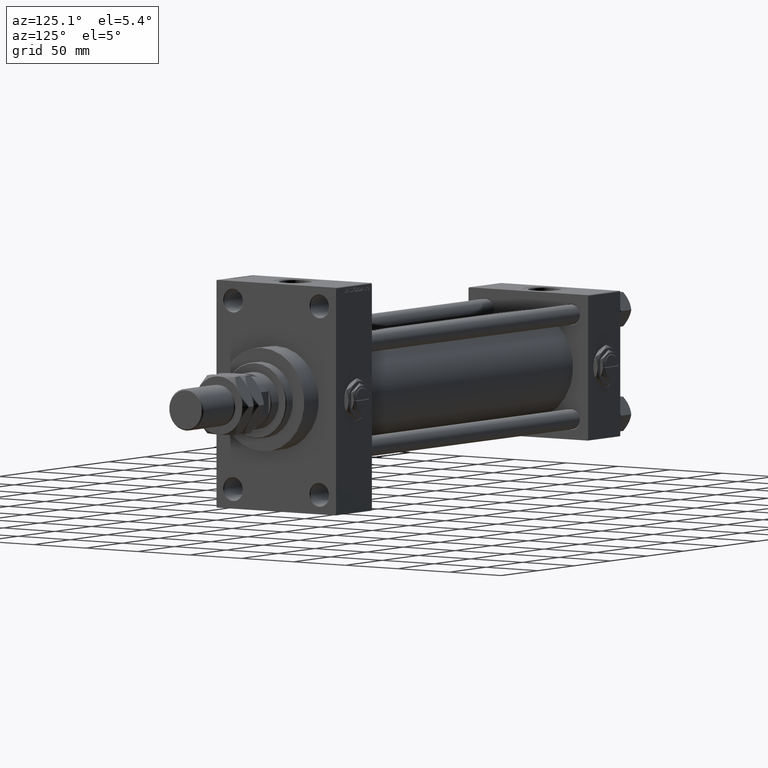
[diagram: clean part render]
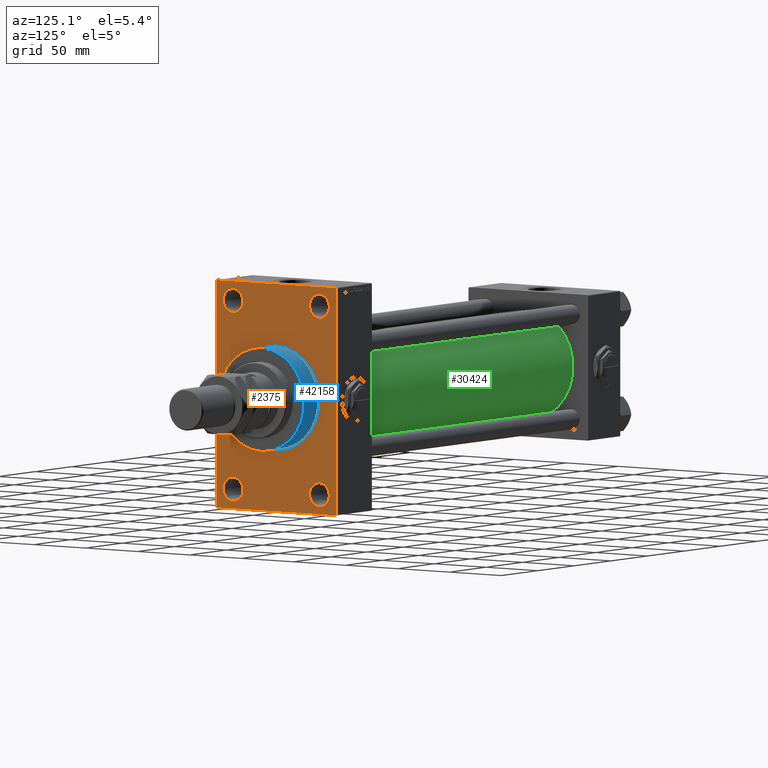
[diagram: same view with three faces highlighted in distinct colors, each labeled with its STEP entity id]
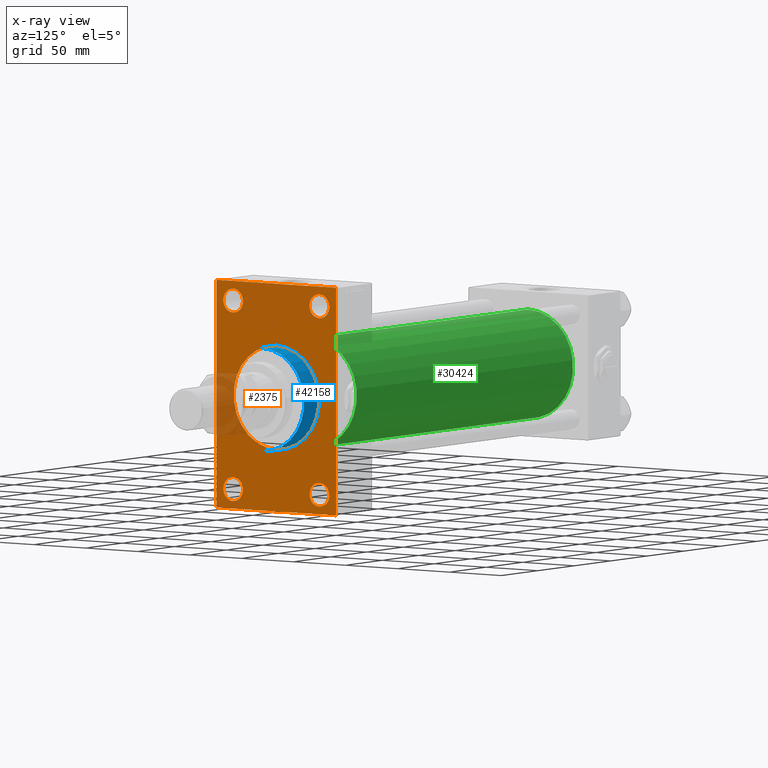
[diagram: x-ray of the same camera — body ghosted, the three highlighted faces saturated]
A machine part, auxiliary view with three faces highlighted in distinct colors.
The next image is the same camera in x-ray (body ghosted, the three faces saturated) — at least one of them is partly hidden behind the body in this view.
Their STEP definitions:

[orange] entity #2375 — the highlighted planar face has unit normal (-1, 0, 0).
#4 = LINE ( 'NONE', #43730, #44310 ) ;
#53 = PLANE ( 'NONE',  #41989 ) ;
#300 = EDGE_LOOP ( 'NONE', ( #7392, #36052 ) ) ;
#406 = DIRECTION ( 'NONE',  ( -1.000000000000000000, 0.000000000000000000, -0.000000000000000000 ) ) ;
#446 = DIRECTION ( 'NONE',  ( 0.000000000000000000, -0.7071067811865474617, 0.7071067811865474617 ) ) ;
#757 = DIRECTION ( 'NONE',  ( -1.000000000000000000, 0.000000000000000000, -0.000000000000000000 ) ) ;
#1269 = FACE_BOUND ( 'NONE', #36810, .T. ) ;
#1315 = CARTESIAN_POINT ( 'NONE',  ( 388.9999999999999432, -57.00000000000007105, 89.99999999999997158 ) ) ;
#1343 = CARTESIAN_POINT ( 'NONE',  ( 388.9999999999999432, -41.49999999999999289, -74.49999999999998579 ) ) ;
#1368 = CARTESIAN_POINT ( 'NONE',  ( 388.9999999999999432, -41.49999999999999289, -83.99999999999998579 ) ) ;
#2169 = CIRCLE ( 'NONE', #22123, 41.00000000000000000 ) ;
#2375 = ADVANCED_FACE ( 'NONE', ( #46668, #34441, #11008, #1269, #21321, #45251 ), #53, .F. ) ;
#2440 = DIRECTION ( 'NONE',  ( 0.000000000000000000, 0.000000000000000000, -1.000000000000000000 ) ) ;
#2944 = VERTEX_POINT ( 'NONE', #9205 ) ;
#3102 = EDGE_CURVE ( 'NONE', #22162, #2944, #2169, .T. ) ;
#3243 = AXIS2_PLACEMENT_3D ( 'NONE', #25218, #28868, #17153 ) ;
#3552 = DIRECTION ( 'NONE',  ( 1.000000000000000000, 0.000000000000000000, 0.000000000000000000 ) ) ;
#3771 = DIRECTION ( 'NONE',  ( -1.000000000000000000, 0.000000000000000000, -0.000000000000000000 ) ) ;
#3883 = DIRECTION ( 'NONE',  ( 0.000000000000000000, 0.000000000000000000, 1.000000000000000000 ) ) ;
#5060 = EDGE_CURVE ( 'NONE', #45394, #45372, #31014, .T. ) ;
#5654 = CIRCLE ( 'NONE', #18120, 9.500000000000008882 ) ;
#5809 = VERTEX_POINT ( 'NONE', #15537 ) ;
#6300 = VERTEX_POINT ( 'NONE', #26806 ) ;
#6808 = AXIS2_PLACEMENT_3D ( 'NONE', #1343, #17749, #21393 ) ;
#6936 = DIRECTION ( 'NONE',  ( 0.000000000000000000, 0.000000000000000000, 1.000000000000000000 ) ) ;
#7228 = CARTESIAN_POINT ( 'NONE',  ( 388.9999999999999432, 41.50000000000000711, -74.50000000000000000 ) ) ;
#7392 = ORIENTED_EDGE ( 'NONE', *, *, #14023, .T. ) ;
#7521 = CARTESIAN_POINT ( 'NONE',  ( 388.9999999999999432, 57.49999999999997158, 89.99999999999998579 ) ) ;
#7798 = ORIENTED_EDGE ( 'NONE', *, *, #30352, .T. ) ;
#7867 = ORIENTED_EDGE ( 'NONE', *, *, #37588, .T. ) ;
#8774 = EDGE_CURVE ( 'NONE', #45394, #9452, #44559, .T. ) ;
#8824 = CIRCLE ( 'NONE', #13812, 9.500000000000008882 ) ;
#9205 = CARTESIAN_POINT ( 'NONE',  ( 388.9999999999999432, 0.000000000000000000, 41.00000000000000000 ) ) ;
#9379 = EDGE_CURVE ( 'NONE', #16783, #25440, #17397, .T. ) ;
#9452 = VERTEX_POINT ( 'NONE', #48794 ) ;
#9981 = EDGE_CURVE ( 'NONE', #14624, #37822, #28169, .T. ) ;
#10555 = LINE ( 'NONE', #14977, #42896 ) ;
#11008 = FACE_BOUND ( 'NONE', #12851, .T. ) ;
#11402 = DIRECTION ( 'NONE',  ( 0.000000000000000000, 0.000000000000000000, 1.000000000000000000 ) ) ;
#11661 = DIRECTION ( 'NONE',  ( -1.000000000000000000, 0.000000000000000000, -0.000000000000000000 ) ) ;
#11677 = VERTEX_POINT ( 'NONE', #16714 ) ;
#12033 = VERTEX_POINT ( 'NONE', #26015 ) ;
#12666 = ORIENTED_EDGE ( 'NONE', *, *, #47920, .T. ) ;
#12822 = ORIENTED_EDGE ( 'NONE', *, *, #15536, .T. ) ;
#12851 = EDGE_LOOP ( 'NONE', ( #39645, #36792 ) ) ;
#13812 = AXIS2_PLACEMENT_3D ( 'NONE', #28606, #757, #3883 ) ;
#13851 = DIRECTION ( 'NONE',  ( 0.000000000000000000, -1.000000000000000000, -1.206764157201257045E-16 ) ) ;
#14023 = EDGE_CURVE ( 'NONE', #37822, #14624, #18461, .T. ) ;
#14594 = ORIENTED_EDGE ( 'NONE', *, *, #9379, .T. ) ;
#14624 = VERTEX_POINT ( 'NONE', #45147 ) ;
#14949 = CIRCLE ( 'NONE', #26581, 9.500000000000008882 ) ;
#14977 = CARTESIAN_POINT ( 'NONE',  ( 388.9999999999999432, 57.49999999999997158, 89.99999999999998579 ) ) ;
#15536 = EDGE_CURVE ( 'NONE', #39116, #35544, #4, .T. ) ;
#15537 = CARTESIAN_POINT ( 'NONE',  ( 388.9999999999999432, 57.49999999999997158, 89.49999999999998579 ) ) ;
#15588 = CIRCLE ( 'NONE', #34722, 9.500000000000008882 ) ;
#16714 = CARTESIAN_POINT ( 'NONE',  ( 388.9999999999999432, -41.49999999999999289, 84.00000000000001421 ) ) ;
#16783 = VERTEX_POINT ( 'NONE', #43479 ) ;
#17153 = DIRECTION ( 'NONE',  ( 0.000000000000000000, 0.000000000000000000, 1.000000000000000000 ) ) ;
#17226 = CARTESIAN_POINT ( 'NONE',  ( 388.9999999999999432, 57.49999999999997868, -90.00000000000000000 ) ) ;
#17397 = CIRCLE ( 'NONE', #22378, 9.500000000000008882 ) ;
#17419 = DIRECTION ( 'NONE',  ( -1.000000000000000000, 0.000000000000000000, -0.000000000000000000 ) ) ;
#17749 = DIRECTION ( 'NONE',  ( -1.000000000000000000, 0.000000000000000000, -0.000000000000000000 ) ) ;
#17775 = DIRECTION ( 'NONE',  ( -1.000000000000000000, 0.000000000000000000, -0.000000000000000000 ) ) ;
#18120 = AXIS2_PLACEMENT_3D ( 'NONE', #39428, #3771, #19671 ) ;
#18412 = CARTESIAN_POINT ( 'NONE',  ( 388.9999999999999432, -41.49999999999999289, 74.50000000000001421 ) ) ;
#18461 = CIRCLE ( 'NONE', #6808, 9.500000000000008882 ) ;
#19351 = VERTEX_POINT ( 'NONE', #27459 ) ;
#19671 = DIRECTION ( 'NONE',  ( 0.000000000000000000, 0.000000000000000000, 1.000000000000000000 ) ) ;
#19705 = DIRECTION ( 'NONE',  ( 0.000000000000000000, 0.000000000000000000, -1.000000000000000000 ) ) ;
#19715 = VECTOR ( 'NONE', #46894, 1000.000000000000000 ) ;
#20628 = CARTESIAN_POINT ( 'NONE',  ( 388.9999999999999432, 41.50000000000000711, 84.00000000000001421 ) ) ;
#21321 = FACE_BOUND ( 'NONE', #35800, .T. ) ;
#21393 = DIRECTION ( 'NONE',  ( 0.000000000000000000, 0.000000000000000000, 1.000000000000000000 ) ) ;
#22123 = AXIS2_PLACEMENT_3D ( 'NONE', #41219, #50059, #2440 ) ;
#22162 = VERTEX_POINT ( 'NONE', #48765 ) ;
#22378 = AXIS2_PLACEMENT_3D ( 'NONE', #36324, #406, #39711 ) ;
#22526 = EDGE_CURVE ( 'NONE', #5809, #38384, #32463, .T. ) ;
#23598 = CARTESIAN_POINT ( 'NONE',  ( 388.9999999999999432, 0.000000000000000000, 0.000000000000000000 ) ) ;
#24585 = CARTESIAN_POINT ( 'NONE',  ( 388.9999999999999432, -57.50000000000002132, 89.99999999999997158 ) ) ;
#25130 = LINE ( 'NONE', #41256, #30734 ) ;
#25218 = CARTESIAN_POINT ( 'NONE',  ( 388.9999999999999432, -41.49999999999999289, -74.49999999999998579 ) ) ;
#25440 = VERTEX_POINT ( 'NONE', #20628 ) ;
#26015 = CARTESIAN_POINT ( 'NONE',  ( 388.9999999999999432, 41.50000000000000711, -84.00000000000000000 ) ) ;
#26299 = CARTESIAN_POINT ( 'NONE',  ( 388.9999999999999432, 56.99999999999997158, 89.99999999999998579 ) ) ;
#26581 = AXIS2_PLACEMENT_3D ( 'NONE', #37549, #17775, #41707 ) ;
#26601 = EDGE_CURVE ( 'NONE', #12033, #6300, #8824, .T. ) ;
#26806 = CARTESIAN_POINT ( 'NONE',  ( 388.9999999999999432, 41.50000000000000711, -64.99999999999998579 ) ) ;
#26957 = EDGE_CURVE ( 'NONE', #5809, #45372, #10555, .T. ) ;
#27346 = DIRECTION ( 'NONE',  ( -0.000000000000000000, -0.7071067811865524577, -0.7071067811865426878 ) ) ;
#27459 = CARTESIAN_POINT ( 'NONE',  ( 388.9999999999999432, -57.50000000000002132, -89.50000000000002842 ) ) ;
#28169 = CIRCLE ( 'NONE', #3243, 9.500000000000008882 ) ;
#28234 = DIRECTION ( 'NONE',  ( 0.000000000000000000, 0.000000000000000000, -1.000000000000000000 ) ) ;
#28606 = CARTESIAN_POINT ( 'NONE',  ( 388.9999999999999432, 41.50000000000000711, -74.50000000000000000 ) ) ;
#28703 = CARTESIAN_POINT ( 'NONE',  ( 388.9999999999999432, 56.99999999999997868, -90.00000000000000000 ) ) ;
#28868 = DIRECTION ( 'NONE',  ( -1.000000000000000000, 0.000000000000000000, -0.000000000000000000 ) ) ;
#29121 = CARTESIAN_POINT ( 'NONE',  ( 388.9999999999999432, 0.000000000000000000, 0.000000000000000000 ) ) ;
#29207 = CARTESIAN_POINT ( 'NONE',  ( 388.9999999999999432, -57.50000000000002132, 89.50000000000002842 ) ) ;
#29463 = EDGE_CURVE ( 'NONE', #35544, #19351, #44355, .T. ) ;
#29539 = EDGE_LOOP ( 'NONE', ( #41727, #7867, #51351, #47972, #49753, #40089, #12666, #12822 ) ) ;
#29651 = CARTESIAN_POINT ( 'NONE',  ( 388.9999999999999432, -41.49999999999999289, 65.00000000000000000 ) ) ;
#30012 = EDGE_CURVE ( 'NONE', #6300, #12033, #15588, .T. ) ;
#30352 = EDGE_CURVE ( 'NONE', #11677, #39600, #5654, .T. ) ;
#30734 = VECTOR ( 'NONE', #49592, 1000.000000000000114 ) ;
#31014 = LINE ( 'NONE', #35171, #19715 ) ;
#31553 = ORIENTED_EDGE ( 'NONE', *, *, #37425, .F. ) ;
#31764 = ORIENTED_EDGE ( 'NONE', *, *, #3102, .F. ) ;
#32463 = LINE ( 'NONE', #36107, #33611 ) ;
#33118 = CARTESIAN_POINT ( 'NONE',  ( 388.9999999999999432, 57.49999999999997868, -89.49999999999995737 ) ) ;
#33161 = ORIENTED_EDGE ( 'NONE', *, *, #46275, .T. ) ;
#33611 = VECTOR ( 'NONE', #446, 1000.000000000000114 ) ;
#34441 = FACE_BOUND ( 'NONE', #300, .T. ) ;
#34722 = AXIS2_PLACEMENT_3D ( 'NONE', #7228, #11661, #11402 ) ;
#35142 = VECTOR ( 'NONE', #47101, 1000.000000000000000 ) ;
#35171 = CARTESIAN_POINT ( 'NONE',  ( 388.9999999999999432, 57.49999999999997868, -89.50000000000001421 ) ) ;
#35544 = VERTEX_POINT ( 'NONE', #29207 ) ;
#35800 = EDGE_LOOP ( 'NONE', ( #31553, #31764 ) ) ;
#36052 = ORIENTED_EDGE ( 'NONE', *, *, #9981, .T. ) ;
#36107 = CARTESIAN_POINT ( 'NONE',  ( 388.9999999999999432, 56.99999999999997158, 89.99999999999998579 ) ) ;
#36324 = CARTESIAN_POINT ( 'NONE',  ( 388.9999999999999432, 41.50000000000000711, 74.50000000000001421 ) ) ;
#36792 = ORIENTED_EDGE ( 'NONE', *, *, #30012, .T. ) ;
#36810 = EDGE_LOOP ( 'NONE', ( #14594, #49144 ) ) ;
#37425 = EDGE_CURVE ( 'NONE', #2944, #22162, #43183, .T. ) ;
#37549 = CARTESIAN_POINT ( 'NONE',  ( 388.9999999999999432, 41.50000000000000711, 74.50000000000001421 ) ) ;
#37588 = EDGE_CURVE ( 'NONE', #19351, #9452, #25130, .T. ) ;
#37822 = VERTEX_POINT ( 'NONE', #1368 ) ;
#37889 = EDGE_CURVE ( 'NONE', #25440, #16783, #14949, .T. ) ;
#38384 = VERTEX_POINT ( 'NONE', #26299 ) ;
#39116 = VERTEX_POINT ( 'NONE', #1315 ) ;
#39428 = CARTESIAN_POINT ( 'NONE',  ( 388.9999999999999432, -41.49999999999999289, 74.50000000000001421 ) ) ;
#39600 = VERTEX_POINT ( 'NONE', #29651 ) ;
#39645 = ORIENTED_EDGE ( 'NONE', *, *, #26601, .T. ) ;
#39711 = DIRECTION ( 'NONE',  ( 0.000000000000000000, 0.000000000000000000, 1.000000000000000000 ) ) ;
#40089 = ORIENTED_EDGE ( 'NONE', *, *, #22526, .T. ) ;
#40684 = AXIS2_PLACEMENT_3D ( 'NONE', #23598, #3552, #19705 ) ;
#41219 = CARTESIAN_POINT ( 'NONE',  ( 388.9999999999999432, 0.000000000000000000, 0.000000000000000000 ) ) ;
#41256 = CARTESIAN_POINT ( 'NONE',  ( 388.9999999999999432, -57.00000000000002132, -90.00000000000001421 ) ) ;
#41707 = DIRECTION ( 'NONE',  ( 0.000000000000000000, 0.000000000000000000, 1.000000000000000000 ) ) ;
#41727 = ORIENTED_EDGE ( 'NONE', *, *, #29463, .T. ) ;
#41759 = AXIS2_PLACEMENT_3D ( 'NONE', #18412, #42598, #6936 ) ;
#41989 = AXIS2_PLACEMENT_3D ( 'NONE', #29121, #17419, #48654 ) ;
#42045 = DIRECTION ( 'NONE',  ( 0.000000000000000000, 3.854941057726238467E-17, -1.000000000000000000 ) ) ;
#42598 = DIRECTION ( 'NONE',  ( -1.000000000000000000, 0.000000000000000000, -0.000000000000000000 ) ) ;
#42896 = VECTOR ( 'NONE', #42045, 1000.000000000000000 ) ;
#43183 = CIRCLE ( 'NONE', #40684, 41.00000000000000000 ) ;
#43479 = CARTESIAN_POINT ( 'NONE',  ( 388.9999999999999432, 41.50000000000000711, 65.00000000000000000 ) ) ;
#43730 = CARTESIAN_POINT ( 'NONE',  ( 388.9999999999999432, -57.50000000000002132, 89.50000000000002842 ) ) ;
#43864 = EDGE_LOOP ( 'NONE', ( #33161, #7798 ) ) ;
#44259 = CIRCLE ( 'NONE', #41759, 9.500000000000008882 ) ;
#44310 = VECTOR ( 'NONE', #27346, 1000.000000000000000 ) ;
#44355 = LINE ( 'NONE', #24585, #48829 ) ;
#44559 = LINE ( 'NONE', #17226, #49758 ) ;
#45147 = CARTESIAN_POINT ( 'NONE',  ( 388.9999999999999432, -41.49999999999999289, -64.99999999999997158 ) ) ;
#45251 = FACE_OUTER_BOUND ( 'NONE', #29539, .T. ) ;
#45372 = VERTEX_POINT ( 'NONE', #33118 ) ;
#45394 = VERTEX_POINT ( 'NONE', #28703 ) ;
#46275 = EDGE_CURVE ( 'NONE', #39600, #11677, #44259, .T. ) ;
#46668 = FACE_BOUND ( 'NONE', #43864, .T. ) ;
#46894 = DIRECTION ( 'NONE',  ( -0.000000000000000000, 0.7071067811865573427, 0.7071067811865378028 ) ) ;
#47101 = DIRECTION ( 'NONE',  ( 0.000000000000000000, -1.000000000000000000, -1.206764157201257291E-16 ) ) ;
#47606 = LINE ( 'NONE', #7521, #35142 ) ;
#47920 = EDGE_CURVE ( 'NONE', #38384, #39116, #47606, .T. ) ;
#47972 = ORIENTED_EDGE ( 'NONE', *, *, #5060, .T. ) ;
#48654 = DIRECTION ( 'NONE',  ( -0.000000000000000000, 0.000000000000000000, 1.000000000000000000 ) ) ;
#48765 = CARTESIAN_POINT ( 'NONE',  ( 388.9999999999999432, 5.021051876504148963E-15, -41.00000000000000000 ) ) ;
#48794 = CARTESIAN_POINT ( 'NONE',  ( 388.9999999999999432, -57.00000000000002132, -90.00000000000001421 ) ) ;
#48829 = VECTOR ( 'NONE', #28234, 1000.000000000000000 ) ;
#49144 = ORIENTED_EDGE ( 'NONE', *, *, #37889, .T. ) ;
#49592 = DIRECTION ( 'NONE',  ( 0.000000000000000000, 0.7071067811865965336, -0.7071067811864985009 ) ) ;
#49753 = ORIENTED_EDGE ( 'NONE', *, *, #26957, .F. ) ;
#49758 = VECTOR ( 'NONE', #13851, 1000.000000000000000 ) ;
#50059 = DIRECTION ( 'NONE',  ( 1.000000000000000000, 0.000000000000000000, 0.000000000000000000 ) ) ;
#51351 = ORIENTED_EDGE ( 'NONE', *, *, #8774, .F. ) ;

[blue] entity #42158 — the highlighted cylindrical surface (partial cylindrical patch) has radius 41 mm, axis along (-1, -0, -0).
#972 = AXIS2_PLACEMENT_3D ( 'NONE', #50607, #42798, #34994 ) ;
#1694 = CARTESIAN_POINT ( 'NONE',  ( 409.0000000000000000, 5.021051876504148963E-15, -41.00000000000000000 ) ) ;
#1921 = ORIENTED_EDGE ( 'NONE', *, *, #3102, .T. ) ;
#2011 = DIRECTION ( 'NONE',  ( 1.000000000000000000, 0.000000000000000000, 0.000000000000000000 ) ) ;
#2169 = CIRCLE ( 'NONE', #22123, 41.00000000000000000 ) ;
#2440 = DIRECTION ( 'NONE',  ( 0.000000000000000000, 0.000000000000000000, -1.000000000000000000 ) ) ;
#2528 = DIRECTION ( 'NONE',  ( 0.000000000000000000, 0.000000000000000000, -1.000000000000000000 ) ) ;
#2530 = CARTESIAN_POINT ( 'NONE',  ( 409.0000000000000000, 5.021051876504148963E-15, -41.00000000000000000 ) ) ;
#2944 = VERTEX_POINT ( 'NONE', #9205 ) ;
#3102 = EDGE_CURVE ( 'NONE', #22162, #2944, #2169, .T. ) ;
#3187 = DIRECTION ( 'NONE',  ( -1.000000000000000000, -0.000000000000000000, -0.000000000000000000 ) ) ;
#3686 = LINE ( 'NONE', #19577, #10002 ) ;
#6126 = ORIENTED_EDGE ( 'NONE', *, *, #16825, .F. ) ;
#7084 = VERTEX_POINT ( 'NONE', #44181 ) ;
#9205 = CARTESIAN_POINT ( 'NONE',  ( 388.9999999999999432, 0.000000000000000000, 41.00000000000000000 ) ) ;
#10002 = VECTOR ( 'NONE', #3187, 1000.000000000000000 ) ;
#16825 = EDGE_CURVE ( 'NONE', #39342, #7084, #18611, .T. ) ;
#17746 = AXIS2_PLACEMENT_3D ( 'NONE', #25958, #2011, #2528 ) ;
#18611 = CIRCLE ( 'NONE', #17746, 41.00000000000000000 ) ;
#19577 = CARTESIAN_POINT ( 'NONE',  ( 409.0000000000000000, 0.000000000000000000, 41.00000000000000000 ) ) ;
#21219 = FACE_OUTER_BOUND ( 'NONE', #27766, .T. ) ;
#22123 = AXIS2_PLACEMENT_3D ( 'NONE', #41219, #50059, #2440 ) ;
#22162 = VERTEX_POINT ( 'NONE', #48765 ) ;
#23486 = VECTOR ( 'NONE', #36841, 1000.000000000000000 ) ;
#25958 = CARTESIAN_POINT ( 'NONE',  ( 409.0000000000000000, 0.000000000000000000, 0.000000000000000000 ) ) ;
#27766 = EDGE_LOOP ( 'NONE', ( #6126, #46707, #1921, #44124 ) ) ;
#29285 = LINE ( 'NONE', #1694, #23486 ) ;
#34994 = DIRECTION ( 'NONE',  ( 0.000000000000000000, 0.000000000000000000, 1.000000000000000000 ) ) ;
#36841 = DIRECTION ( 'NONE',  ( -1.000000000000000000, -0.000000000000000000, -0.000000000000000000 ) ) ;
#38973 = EDGE_CURVE ( 'NONE', #7084, #2944, #3686, .T. ) ;
#39342 = VERTEX_POINT ( 'NONE', #2530 ) ;
#41219 = CARTESIAN_POINT ( 'NONE',  ( 388.9999999999999432, 0.000000000000000000, 0.000000000000000000 ) ) ;
#42158 = ADVANCED_FACE ( 'NONE', ( #21219 ), #45684, .T. ) ;
#42798 = DIRECTION ( 'NONE',  ( -1.000000000000000000, -0.000000000000000000, -0.000000000000000000 ) ) ;
#44124 = ORIENTED_EDGE ( 'NONE', *, *, #38973, .F. ) ;
#44181 = CARTESIAN_POINT ( 'NONE',  ( 409.0000000000000000, 0.000000000000000000, 41.00000000000000000 ) ) ;
#45684 = CYLINDRICAL_SURFACE ( 'NONE', #972, 41.00000000000000000 ) ;
#46707 = ORIENTED_EDGE ( 'NONE', *, *, #47220, .T. ) ;
#47220 = EDGE_CURVE ( 'NONE', #39342, #22162, #29285, .T. ) ;
#48765 = CARTESIAN_POINT ( 'NONE',  ( 388.9999999999999432, 5.021051876504148963E-15, -41.00000000000000000 ) ) ;
#50059 = DIRECTION ( 'NONE',  ( 1.000000000000000000, 0.000000000000000000, 0.000000000000000000 ) ) ;
#50607 = CARTESIAN_POINT ( 'NONE',  ( 409.0000000000000000, 0.000000000000000000, 0.000000000000000000 ) ) ;

[green] entity #30424 — the highlighted cylindrical surface (partial cylindrical patch) has radius 43 mm, axis along (-1, -0, -0).
#642 = DIRECTION ( 'NONE',  ( -1.000000000000000000, -0.000000000000000000, -0.000000000000000000 ) ) ;
#1160 = CARTESIAN_POINT ( 'NONE',  ( 339.9999999999999432, -2.602085213965210642E-15, 0.000000000000000000 ) ) ;
#1747 = EDGE_CURVE ( 'NONE', #41662, #42902, #45330, .T. ) ;
#4016 = EDGE_LOOP ( 'NONE', ( #28294, #8202, #22552, #34882 ) ) ;
#5710 = CARTESIAN_POINT ( 'NONE',  ( 339.9999999999999432, -2.602085213965210642E-15, 43.00000000000000000 ) ) ;
#5763 = LINE ( 'NONE', #21653, #16522 ) ;
#8202 = ORIENTED_EDGE ( 'NONE', *, *, #31969, .T. ) ;
#9316 = CIRCLE ( 'NONE', #50092, 43.00000000000000000 ) ;
#12522 = CARTESIAN_POINT ( 'NONE',  ( 43.99999999999998579, 2.663896022368408223E-15, -43.00000000000000000 ) ) ;
#13881 = VERTEX_POINT ( 'NONE', #23510 ) ;
#16522 = VECTOR ( 'NONE', #21388, 1000.000000000000000 ) ;
#17043 = DIRECTION ( 'NONE',  ( 1.000000000000000000, 0.000000000000000000, 0.000000000000000000 ) ) ;
#18220 = DIRECTION ( 'NONE',  ( -1.000000000000000000, -0.000000000000000000, -0.000000000000000000 ) ) ;
#20989 = DIRECTION ( 'NONE',  ( 0.000000000000000000, 0.000000000000000000, 1.000000000000000000 ) ) ;
#21185 = FACE_OUTER_BOUND ( 'NONE', #4016, .T. ) ;
#21388 = DIRECTION ( 'NONE',  ( -1.000000000000000000, -0.000000000000000000, -0.000000000000000000 ) ) ;
#21653 = CARTESIAN_POINT ( 'NONE',  ( 339.9999999999999432, 2.663896022368408223E-15, -43.00000000000000000 ) ) ;
#22112 = LINE ( 'NONE', #5710, #28176 ) ;
#22552 = ORIENTED_EDGE ( 'NONE', *, *, #1747, .T. ) ;
#23510 = CARTESIAN_POINT ( 'NONE',  ( 339.9999999999999432, 2.663896022368408223E-15, -43.00000000000000000 ) ) ;
#24904 = CARTESIAN_POINT ( 'NONE',  ( 43.99999999999998579, -2.602085213965210642E-15, 0.000000000000000000 ) ) ;
#25426 = CARTESIAN_POINT ( 'NONE',  ( 43.99999999999998579, -2.602085213965210642E-15, 43.00000000000000000 ) ) ;
#27256 = AXIS2_PLACEMENT_3D ( 'NONE', #36305, #642, #48274 ) ;
#28176 = VECTOR ( 'NONE', #18220, 1000.000000000000000 ) ;
#28294 = ORIENTED_EDGE ( 'NONE', *, *, #44000, .F. ) ;
#29543 = AXIS2_PLACEMENT_3D ( 'NONE', #24904, #32707, #20989 ) ;
#30424 = ADVANCED_FACE ( 'NONE', ( #21185 ), #48522, .T. ) ;
#31969 = EDGE_CURVE ( 'NONE', #13881, #41662, #5763, .T. ) ;
#32707 = DIRECTION ( 'NONE',  ( 1.000000000000000000, -0.000000000000000000, 0.000000000000000000 ) ) ;
#32952 = EDGE_CURVE ( 'NONE', #40909, #42902, #22112, .T. ) ;
#34882 = ORIENTED_EDGE ( 'NONE', *, *, #32952, .F. ) ;
#36305 = CARTESIAN_POINT ( 'NONE',  ( 339.9999999999999432, -2.602085213965210642E-15, 0.000000000000000000 ) ) ;
#36893 = CARTESIAN_POINT ( 'NONE',  ( 339.9999999999999432, -2.602085213965210642E-15, 43.00000000000000000 ) ) ;
#40909 = VERTEX_POINT ( 'NONE', #36893 ) ;
#41662 = VERTEX_POINT ( 'NONE', #12522 ) ;
#42902 = VERTEX_POINT ( 'NONE', #25426 ) ;
#44000 = EDGE_CURVE ( 'NONE', #13881, #40909, #9316, .T. ) ;
#45330 = CIRCLE ( 'NONE', #29543, 43.00000000000000000 ) ;
#48274 = DIRECTION ( 'NONE',  ( 0.000000000000000000, 0.000000000000000000, 1.000000000000000000 ) ) ;
#48522 = CYLINDRICAL_SURFACE ( 'NONE', #27256, 43.00000000000000000 ) ;
#48795 = DIRECTION ( 'NONE',  ( 0.000000000000000000, 0.000000000000000000, -1.000000000000000000 ) ) ;
#50092 = AXIS2_PLACEMENT_3D ( 'NONE', #1160, #17043, #48795 ) ;